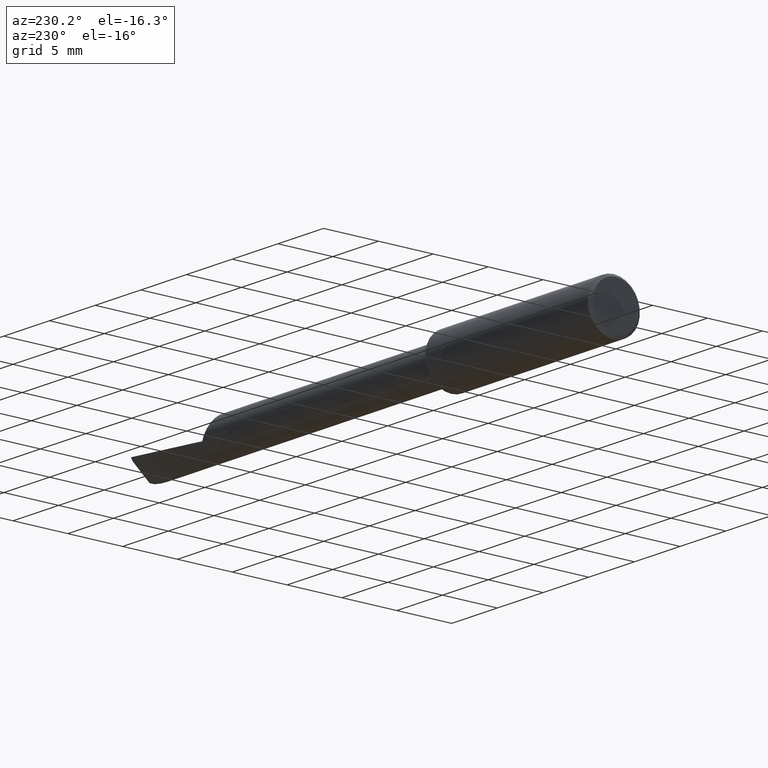
[diagram: clean part render]
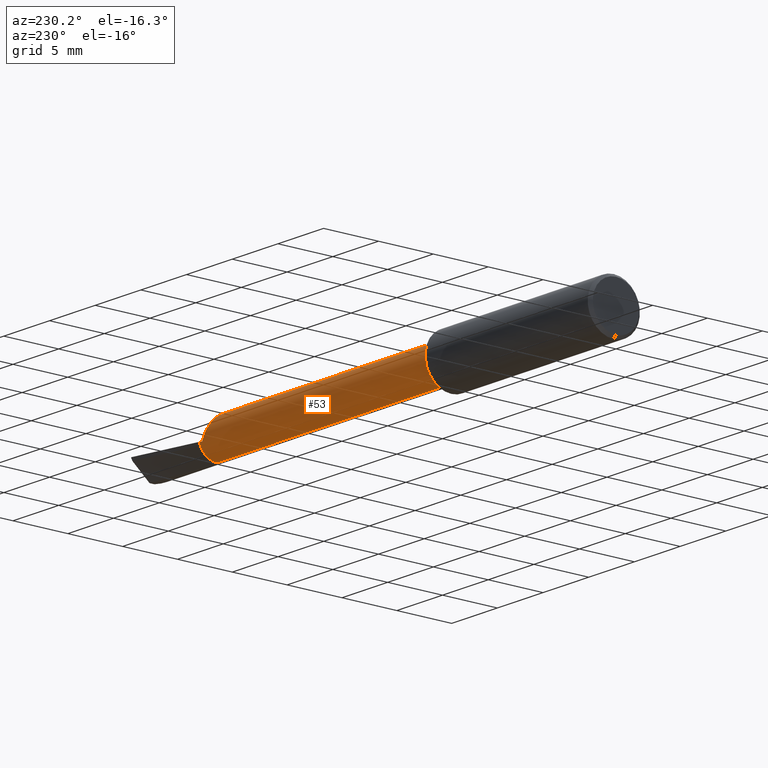
[diagram: same view with one face highlighted and labeled with its STEP entity id]
A machine part, auxiliary view. The second image highlights one B-rep face of the part: STEP entity #53.
In plain terms, the highlighted cylindrical surface (edge-blend (fillet) strip) has radius 1.651 mm, axis along (-1, -0, -0).
Its self-contained STEP definition (entity closure, byte-faithful):
#2 = DIRECTION ( 'NONE',  ( 0.000000000000000000, 0.000000000000000000, 1.000000000000000000 ) ) ;
#6 = CARTESIAN_POINT ( 'NONE',  ( 1.663300000000000001, 0.008278302218628536685, 0.06447068878472642095 ) ) ;
#34 = CARTESIAN_POINT ( 'NONE',  ( 1.683463722967595499, 0.06159209019985895095, 0.02111675725298023387 ) ) ;
#36 = ORIENTED_EDGE ( 'NONE', *, *, #185, .T. ) ;
#49 = ORIENTED_EDGE ( 'NONE', *, *, #732, .T. ) ;
#50 = CARTESIAN_POINT ( 'NONE',  ( 1.675285557495423960, 0.05481803054577297218, 0.03499875016799042227 ) ) ;
#53 = ADVANCED_FACE ( 'NONE', ( #539 ), #704, .T. ) ;
#55 = CARTESIAN_POINT ( 'NONE',  ( 1.663517204838324437, 0.005571531967642247805, 0.06481825297132121078 ) ) ;
#61 = CARTESIAN_POINT ( 'NONE',  ( 1.692152312814585668, 0.06461613229309375039, 0.007092158600818460404 ) ) ;
#69 = CARTESIAN_POINT ( 'NONE',  ( 0.000000000000000000, 0.000000000000000000, 0.06499999999999998834 ) ) ;
#70 = CARTESIAN_POINT ( 'NONE',  ( 1.719999999999999973, 0.06286089002485090171, -0.01653809255275878048 ) ) ;
#88 = VERTEX_POINT ( 'NONE', #234 ) ;
#92 = CARTESIAN_POINT ( 'NONE',  ( 1.679691886667123102, 0.05894830204861728484, 0.02738827600253190137 ) ) ;
#97 = CARTESIAN_POINT ( 'NONE',  ( 1.677762388820738693, 0.05732833905527691398, 0.03067025657965057051 ) ) ;
#102 = EDGE_CURVE ( 'NONE', #555, #88, #602, .T. ) ;
#103 = CARTESIAN_POINT ( 'NONE',  ( 1.663300000000000001, 0.02346032035286604173, 0.06061858930180492183 ) ) ;
#106 = CARTESIAN_POINT ( 'NONE',  ( 1.663300000000000001, 0.008278302218628536685, 0.06447068878472642095 ) ) ;
#126 = EDGE_CURVE ( 'NONE', #717, #149, #130, .T. ) ;
#130 = B_SPLINE_CURVE_WITH_KNOTS ( 'NONE', 3,
 ( #518, #572, #750, #284, #580, #623, #50, #289, #97, #391, #332, #676, #92, #567, #274, #34, #508, #736, #242, #588, #61, #412, #543, #303, #653, #310, #713 ),
 .UNSPECIFIED., .F., .F.,
 ( 4, 2, 2, 2, 1, 1, 1, 2, 2, 2, 2, 1, 1, 2, 2, 4 ),
 ( 0.000000000000000000, 0.2499999999998402389, 0.3749999999997589706, 0.4374999999997197797, 0.4687499999997016831, 0.4843749999996926903, 0.4921874999996898037, 0.4960937499996884159, 0.4999999999996870281, 0.6249999999997348787, 0.6874999999997608580, 0.7187499999997738476, 0.7343749999997820632, 0.7421874999997861710, 0.7499999999997902789, 1.000000000000000000 ),
 .UNSPECIFIED. ) ;
#136 = VERTEX_POINT ( 'NONE', #472 ) ;
#139 = ORIENTED_EDGE ( 'NONE', *, *, #102, .T. ) ;
#143 = VECTOR ( 'NONE', #161, 39.37007874015748143 ) ;
#146 = ORIENTED_EDGE ( 'NONE', *, *, #285, .F. ) ;
#149 = VERTEX_POINT ( 'NONE', #306 ) ;
#153 = CARTESIAN_POINT ( 'NONE',  ( 1.719999999999999973, 0.06286089002485090171, -0.01653809255275878395 ) ) ;
#161 = DIRECTION ( 'NONE',  ( -1.000000000000000000, -0.000000000000000000, -0.000000000000000000 ) ) ;
#164 = CARTESIAN_POINT ( 'NONE',  ( 0.000000000000000000, 7.960204194457793628E-18, -0.06499999999999998834 ) ) ;
#182 = AXIS2_PLACEMENT_3D ( 'NONE', #681, #619, #505 ) ;
#184 = AXIS2_PLACEMENT_3D ( 'NONE', #542, #596, #2 ) ;
#185 = EDGE_CURVE ( 'NONE', #136, #517, #309, .T. ) ;
#213 = EDGE_CURVE ( 'NONE', #149, #555, #751, .T. ) ;
#230 = CARTESIAN_POINT ( 'NONE',  ( 1.719999999999999973, 0.000000000000000000, 0.000000000000000000 ) ) ;
#232 = VECTOR ( 'NONE', #385, 39.37007874015748143 ) ;
#234 = CARTESIAN_POINT ( 'NONE',  ( 1.719999999999999973, 0.06182337109529804919, -0.02007164134825715346 ) ) ;
#242 = CARTESIAN_POINT ( 'NONE',  ( 1.689967308987869732, 0.06414045681320691694, 0.01058732485183084063 ) ) ;
#246 = CARTESIAN_POINT ( 'NONE',  ( 1.663845510409285966, 0.002805387472417639628, 0.06499993362033289201 ) ) ;
#273 = ORIENTED_EDGE ( 'NONE', *, *, #468, .F. ) ;
#274 = CARTESIAN_POINT ( 'NONE',  ( 1.681505128274113359, 0.06034990532914726730, 0.02433799703283779162 ) ) ;
#284 = CARTESIAN_POINT ( 'NONE',  ( 1.669748380653416353, 0.04684333567167949658, 0.04525638695301841680 ) ) ;
#285 = EDGE_CURVE ( 'NONE', #574, #570, #442, .T. ) ;
#289 = CARTESIAN_POINT ( 'NONE',  ( 1.676920095461903015, 0.05651324435725622874, 0.03213231175587470678 ) ) ;
#299 = CARTESIAN_POINT ( 'NONE',  ( 1.713786355346465617, 0.06277468955886604529, -0.01686573844028011263 ) ) ;
#303 = CARTESIAN_POINT ( 'NONE',  ( 1.693236561504517956, 0.06477844946102732926, 0.005367273020709427758 ) ) ;
#306 = CARTESIAN_POINT ( 'NONE',  ( 1.707578098285200463, 0.06268507833287290110, -0.01719246795552008961 ) ) ;
#309 = B_SPLINE_CURVE_WITH_KNOTS ( 'NONE', 3,
 ( #599, #246, #55, #6 ),
 .UNSPECIFIED., .F., .F.,
 ( 4, 4 ),
 ( 0.9192042301275763494, 1.000000000000000000 ),
 .UNSPECIFIED. ) ;
#310 = CARTESIAN_POINT ( 'NONE',  ( 1.702833695811477366, 0.06467196128500690699, -0.009949618016757583519 ) ) ;
#326 = CARTESIAN_POINT ( 'NONE',  ( 0.7350000000000000977, 7.960204194457793628E-18, -0.06499999999999998834 ) ) ;
#332 = CARTESIAN_POINT ( 'NONE',  ( 1.679313039348972580, 0.05864799379669154156, 0.02802770721881894106 ) ) ;
#334 = LINE ( 'NONE', #164, #143 ) ;
#342 = CARTESIAN_POINT ( 'NONE',  ( 1.663300000000000001, 0.008278302218628536685, 0.06447068878472642095 ) ) ;
#367 = LINE ( 'NONE', #69, #232 ) ;
#378 = CARTESIAN_POINT ( 'NONE',  ( 0.7350000000000000977, 0.000000000000000000, 0.000000000000000000 ) ) ;
#385 = DIRECTION ( 'NONE',  ( -1.000000000000000000, -0.000000000000000000, -0.000000000000000000 ) ) ;
#391 = CARTESIAN_POINT ( 'NONE',  ( 1.678788857063345352, 0.05821854765298676432, 0.02891636917936401749 ) ) ;
#400 = CIRCLE ( 'NONE', #182, 0.06499999999999998834 ) ;
#401 = AXIS2_PLACEMENT_3D ( 'NONE', #378, #716, #609 ) ;
#412 = CARTESIAN_POINT ( 'NONE',  ( 1.692676690812094487, 0.06469871817567075800, 0.006257383849152075954 ) ) ;
#442 = CIRCLE ( 'NONE', #401, 0.06499999999999998834 ) ;
#447 = CARTESIAN_POINT ( 'NONE',  ( 1.663300000000000001, 0.02346032035286604173, 0.06061858930180492183 ) ) ;
#456 = CARTESIAN_POINT ( 'NONE',  ( 1.663299999999999113, 0.01331570278299702703, 0.06309413542535316499 ) ) ;
#468 = EDGE_CURVE ( 'NONE', #717, #517, #635, .T. ) ;
#472 = CARTESIAN_POINT ( 'NONE',  ( 1.664282264028300151, 9.629122535582421507E-07, 0.06500714507469043668 ) ) ;
#482 = AXIS2_PLACEMENT_3D ( 'NONE', #230, #524, #636 ) ;
#484 = EDGE_CURVE ( 'NONE', #670, #570, #334, .T. ) ;
#505 = DIRECTION ( 'NONE',  ( 0.000000000000000000, -1.776356839400250465E-15, -1.000000000000000000 ) ) ;
#508 = CARTESIAN_POINT ( 'NONE',  ( 1.686848595253099159, 0.06312550202981088987, 0.01561399201042308095 ) ) ;
#517 = VERTEX_POINT ( 'NONE', #342 ) ;
#518 = CARTESIAN_POINT ( 'NONE',  ( 1.663300000000000001, 0.02346032035286604173, 0.06061858930180492183 ) ) ;
#524 = DIRECTION ( 'NONE',  ( -1.000000000000000000, -0.000000000000000000, -0.000000000000000000 ) ) ;
#528 = CARTESIAN_POINT ( 'NONE',  ( 0.7350000000000000977, 0.000000000000000000, 0.06499999999999998834 ) ) ;
#539 = FACE_OUTER_BOUND ( 'NONE', #724, .T. ) ;
#542 = CARTESIAN_POINT ( 'NONE',  ( 0.000000000000000000, 0.000000000000000000, 0.000000000000000000 ) ) ;
#543 = CARTESIAN_POINT ( 'NONE',  ( 1.693028604165877304, 0.06475040906885558278, 0.005697675984676869691 ) ) ;
#555 = VERTEX_POINT ( 'NONE', #153 ) ;
#561 = ORIENTED_EDGE ( 'NONE', *, *, #484, .T. ) ;
#567 = CARTESIAN_POINT ( 'NONE',  ( 1.679792626415087975, 0.05902672498517832350, 0.02721865105459760070 ) ) ;
#570 = VERTEX_POINT ( 'NONE', #326 ) ;
#572 = CARTESIAN_POINT ( 'NONE',  ( 1.663923067664691446, 0.03059188169535627042, 0.05785857914624000647 ) ) ;
#574 = VERTEX_POINT ( 'NONE', #528 ) ;
#580 = CARTESIAN_POINT ( 'NONE',  ( 1.671393911262637255, 0.04972602485500073055, 0.04208638470534854098 ) ) ;
#588 = CARTESIAN_POINT ( 'NONE',  ( 1.690953208385895801, 0.06438929308929125517, 0.009006084044845430459 ) ) ;
#596 = DIRECTION ( 'NONE',  ( -1.000000000000000000, -0.000000000000000000, -0.000000000000000000 ) ) ;
#599 = CARTESIAN_POINT ( 'NONE',  ( 1.664282264028300151, 9.629122535582421507E-07, 0.06500714507469043668 ) ) ;
#602 = CIRCLE ( 'NONE', #482, 0.06500000000000000222 ) ;
#609 = DIRECTION ( 'NONE',  ( 0.000000000000000000, 0.000000000000000000, 1.000000000000000000 ) ) ;
#619 = DIRECTION ( 'NONE',  ( -1.000000000000000000, -0.000000000000000000, -0.000000000000000000 ) ) ;
#623 = CARTESIAN_POINT ( 'NONE',  ( 1.674262597186032098, 0.05360118437837731870, 0.03683270780972922043 ) ) ;
#625 = CARTESIAN_POINT ( 'NONE',  ( 1.663299999999999113, 0.01837786627335230225, 0.06180985222000357632 ) ) ;
#635 = B_SPLINE_CURVE_WITH_KNOTS ( 'NONE', 3,
 ( #103, #625, #456, #106 ),
 .UNSPECIFIED., .F., .F.,
 ( 4, 4 ),
 ( 0.000000000000000000, 1.000000000000000000 ),
 .UNSPECIFIED. ) ;
#636 = DIRECTION ( 'NONE',  ( 0.000000000000000000, 0.000000000000000000, 1.000000000000000000 ) ) ;
#653 = CARTESIAN_POINT ( 'NONE',  ( 1.698102347098719100, 0.06539037626765818734, -0.002357152386695446442 ) ) ;
#670 = VERTEX_POINT ( 'NONE', #737 ) ;
#675 = ORIENTED_EDGE ( 'NONE', *, *, #746, .F. ) ;
#676 = CARTESIAN_POINT ( 'NONE',  ( 1.679540034935167458, 0.05882863623125147295, 0.02764437620885965702 ) ) ;
#681 = CARTESIAN_POINT ( 'NONE',  ( 1.719999999999999973, 0.000000000000000000, 0.000000000000000000 ) ) ;
#683 = ORIENTED_EDGE ( 'NONE', *, *, #126, .T. ) ;
#704 = CYLINDRICAL_SURFACE ( 'NONE', #184, 0.06499999999999998834 ) ;
#708 = CARTESIAN_POINT ( 'NONE',  ( 1.707578098285200463, 0.06268507833287290110, -0.01719246795552008961 ) ) ;
#713 = CARTESIAN_POINT ( 'NONE',  ( 1.707578098285200463, 0.06268507833287290110, -0.01719246795552008961 ) ) ;
#716 = DIRECTION ( 'NONE',  ( -1.000000000000000000, -0.000000000000000000, -0.000000000000000000 ) ) ;
#717 = VERTEX_POINT ( 'NONE', #447 ) ;
#724 = EDGE_LOOP ( 'NONE', ( #49, #561, #146, #675, #36, #273, #683, #730, #139 ) ) ;
#730 = ORIENTED_EDGE ( 'NONE', *, *, #213, .T. ) ;
#732 = EDGE_CURVE ( 'NONE', #88, #670, #400, .T. ) ;
#736 = CARTESIAN_POINT ( 'NONE',  ( 1.688051382722479232, 0.06358089602633844317, 0.01366851313743281879 ) ) ;
#737 = CARTESIAN_POINT ( 'NONE',  ( 1.719999999999999973, 7.960204194457793628E-18, -0.06499999999999998834 ) ) ;
#746 = EDGE_CURVE ( 'NONE', #136, #574, #367, .T. ) ;
#750 = CARTESIAN_POINT ( 'NONE',  ( 1.665612568844880181, 0.03757897109390824497, 0.05368962245245466336 ) ) ;
#751 =( BOUNDED_CURVE ( )  B_SPLINE_CURVE ( 2, ( #708, #299, #70 ),
 .UNSPECIFIED., .F., .T. ) 
 B_SPLINE_CURVE_WITH_KNOTS ( ( 3, 3 ),
 ( 0.6097718758355035185, 0.6263572643317619759 ),
 .UNSPECIFIED. ) 
 CURVE ( )  GEOMETRIC_REPRESENTATION_ITEM ( )  RATIONAL_B_SPLINE_CURVE ( ( 0.9789567561682523955, 0.9787315568591534731, 0.9785329928491626195 ) ) 
 REPRESENTATION_ITEM ( '' )  );